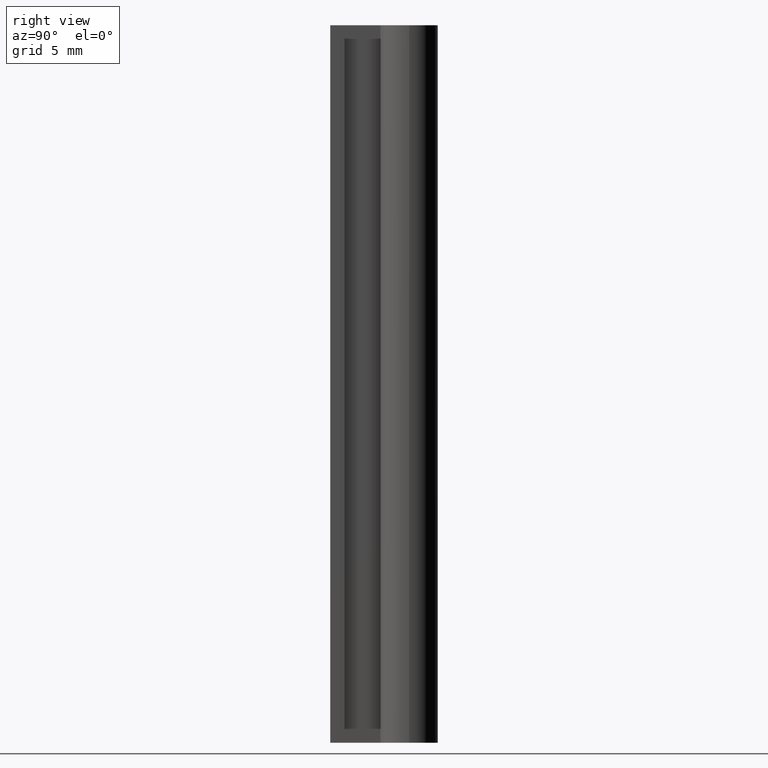
[diagram: clean part render]
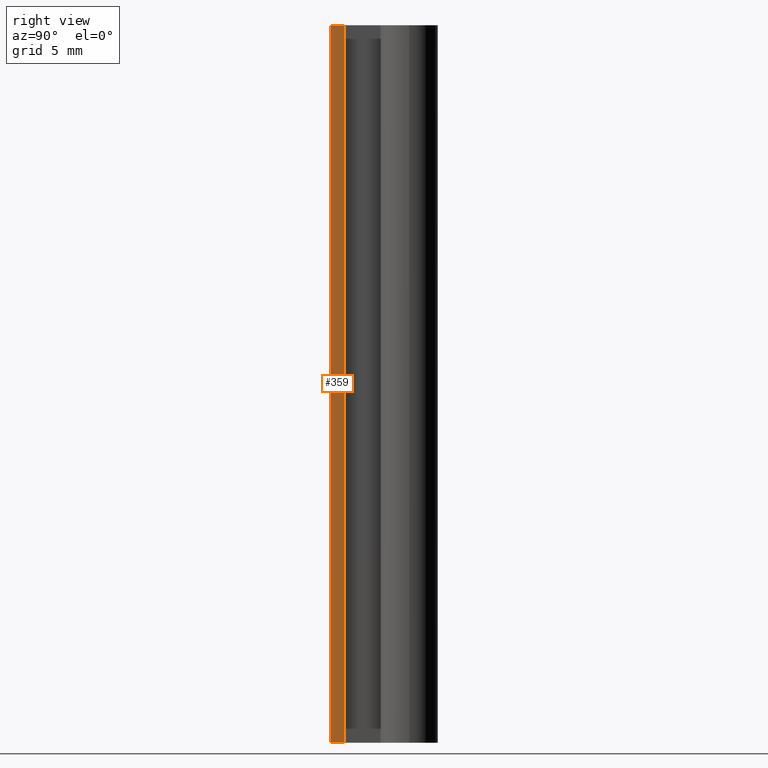
[diagram: same view with one face highlighted and labeled with its STEP entity id]
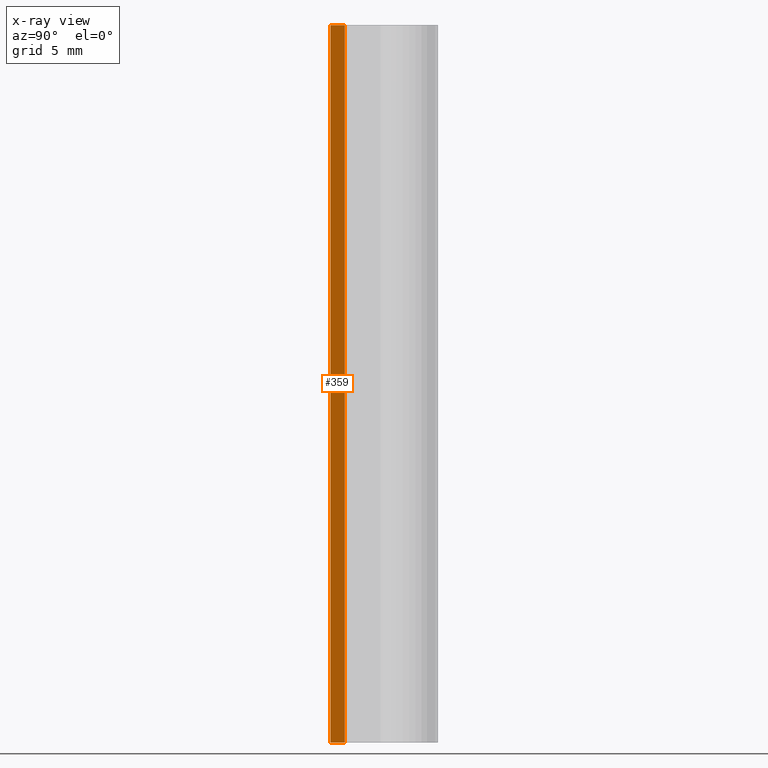
[diagram: x-ray of the same camera — body ghosted, the highlighted face saturated]
A machine part, right view. The second image highlights one B-rep face of the part: STEP entity #359.
The next image is the same camera in x-ray: the body ghosted, the highlighted face saturated — about 0% of this face is hidden behind the body in this view.
In plain terms, the highlighted planar face has unit normal (1, 0, 0).
Its self-contained STEP definition (entity closure, byte-faithful):
#303=CARTESIAN_POINT('',(2.500000000000000,-4.0,-50.0));
#304=VERTEX_POINT('',#303);
#311=CARTESIAN_POINT('',(2.500000000000000,-4.0,0.0));
#312=VERTEX_POINT('',#311);
#313=CARTESIAN_POINT('',(2.500000000000000,-4.0,-50.0));
#314=DIRECTION('',(0.0,0.0,1.0));
#315=VECTOR('',#314,50.0);
#316=LINE('',#313,#315);
#317=EDGE_CURVE('',#304,#312,#316,.T.);
#329=CARTESIAN_POINT('',(2.500000000000000,-4.0,-50.0));
#330=DIRECTION('',(1.0,0.0,0.0));
#331=DIRECTION('',(0.0,1.0,0.0));
#332=AXIS2_PLACEMENT_3D('',#329,#330,#331);
#333=PLANE('',#332);
#334=CARTESIAN_POINT('',(2.500000000000000,-3.0,-50.0));
#335=VERTEX_POINT('',#334);
#336=CARTESIAN_POINT('',(2.500000000000000,-4.0,-50.0));
#337=DIRECTION('',(0.0,1.0,0.0));
#338=VECTOR('',#337,1.0);
#339=LINE('',#336,#338);
#340=EDGE_CURVE('',#304,#335,#339,.T.);
#341=ORIENTED_EDGE('',*,*,#340,.T.);
#342=CARTESIAN_POINT('',(2.500000000000000,-3.0,0.0));
#343=VERTEX_POINT('',#342);
#344=CARTESIAN_POINT('',(2.500000000000000,-3.0,-50.0));
#345=DIRECTION('',(0.0,0.0,1.0));
#346=VECTOR('',#345,50.0);
#347=LINE('',#344,#346);
#348=EDGE_CURVE('',#335,#343,#347,.T.);
#349=ORIENTED_EDGE('',*,*,#348,.T.);
#350=CARTESIAN_POINT('',(2.500000000000000,-4.0,0.0));
#351=DIRECTION('',(0.0,1.0,0.0));
#352=VECTOR('',#351,1.0);
#353=LINE('',#350,#352);
#354=EDGE_CURVE('',#312,#343,#353,.T.);
#355=ORIENTED_EDGE('',*,*,#354,.F.);
#356=ORIENTED_EDGE('',*,*,#317,.F.);
#357=EDGE_LOOP('',(#341,#349,#355,#356));
#358=FACE_OUTER_BOUND('',#357,.T.);
#359=ADVANCED_FACE('',(#358),#333,.T.);